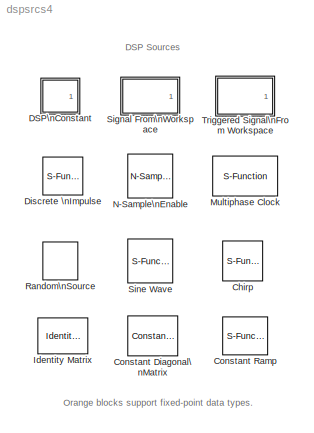
MODEL dspsrcs4
KIND library
BLOCK [S-Function] Chirp
  FunctionName = sdspchirp
  MaskCallbackString = |||||||||
  MaskDescription = Linear, Logarithmic, and Quadratic modes generate a swept-frequency cosine with instantaneous frequency values specified by the frequency and time parameters.   The Swept cosine mode generates a swept-frequency cosine with a linear instantaneous output frequency that may differ from the one specified by the frequency and time parameters.
  MaskDisplay = plot(t,y);\ntext(.2,.85,txt)
  MaskEnableString = on,on,on,on,on,on,on,on,on,on
  MaskHelp = web(dspbhelp);
  MaskIconFrame = on
  MaskIconOpaque = on
  MaskIconRotate = none
  MaskIconUnits = normalized
  MaskInitialization = [t,y,txt] = dspblkchirp2('icon');\n[beta,fmin] = dspblkchirp2('param',sweep, f0, f1, t1,Tsweep);
  MaskPromptString = Frequency sweep:|Sweep mode:|Initial frequency (Hz):|Target frequency (Hz):|Target time (sec):|Sweep time (sec):|Initial phase (radians):|Sample time:|Samples per frame:|Output data type:
  MaskSelfModifiable = on
  MaskStyleString = popup(Swept cosine|Linear|Logarithmic|Quadratic),popup(Unidirectional|Bidirectional),edit,edit,edit,edit,edit,edit,edit,popup(Double|Single)
  MaskTabNameString = ,,,,,,,,,
  MaskToolTipString = on,on,on,on,on,on,on,on,on,on
  MaskTunableValueString = on,on,on,on,on,on,on,off,off,off
  MaskType = Chirp
  MaskValueString = Linear|Unidirectional|1000|4000|1|1|0|1/8000|1|Double
  MaskVarAliasString = ,,,,,,,,,
  MaskVariables = sweep=@1;mode=@2;f0=@3;f1=@4;t1=@5;Tsweep=@6;phase=@7;Ts=@8;spf=@9;datatype=@10;
  MaskVisibilityString = on,on,on,on,on,on,on,on,on,on
  Parameters = sweep, mode, f0, f1, t1, Tsweep, phase, Ts, spf, beta, fmin,datatype
  Ports = [0, 1]
BLOCK [Reference] Constant Diagonal\nMatrix  REF=dspmtrx3/Constant Diagonal\nMatrix
  Ports = [0, 1]
  ShowPortLabels = off
  SourceBlock = dspmtrx3/Constant Diagonal\nMatrix
  SourceType = Constant Diagonal Matrix
  additionalParams = off
  allowOverrides = on
  dataType = Inherit from 'Constant(s) along diagonal'
  fracBitsMode = Best precision
  frame = off
  isSigned = on
  numFracBits = 15
  q = ones(1,3)
  udDataType = sfix(16)
  wordLen = 16
BLOCK [S-Function] Constant Ramp
  CopyFcn = dspfixptcopycallback
  FunctionName = sdspramp
  MaskCallbackString = |||||dspblkramp;|||dspblkramp;|dspblkramp;|
  MaskDescription = Generate a ramp of length L, where L is either the number of rows or the number of columns of the input to the block.  Specify whether L is equal to the number of input rows or columns using the 'Ramp length equals number of' parameter.\n\nThe output of this block is calculated using\noutput = [0:L-1] * slope + offset\n\nNote: Use the Ramp block in the Simulink Sources library to generate a ramp w...<+30ch>
  MaskDisplay = plot(x,y)
  MaskEnableString = on,on,on,off,off,on,on,on,on,on,on
  MaskHelp = web(dspbhelp);
  MaskIconFrame = on
  MaskIconOpaque = on
  MaskIconRotate = none
  MaskIconUnits = normalized
  MaskInitialization = x = [.1 .9];\nif ~isa(Slope,'double')\n	s = 1;\nelse\n	s = Slope;\nend\nif (s >= 0), y =  s * [0 1];\nelse,   y =  s * [-1 0];  end;\n[dtInfo,dTypeID]=dspblkramp('init');\nisSigned=dtInfo.DataTypeIsSigned;\nisCustomFloat=dtInfo.DataTypeIsCustomFloat;\nwordLength=dtInfo.DataTypeWordLength;\nfracBits=dtInfo.DataTypeFracOrMantBits;\n
  MaskPromptString = Ramp length equals number of:|Slope:|Offset:|------- Show additional parameters --------|Allow overrides from DSP Fixed-Point Attributes blocks|Output data type:|Signed|Word length:|User-defined data type (e.g. sfix(16), float('single')):|Set fraction length in output to:|Fraction length:
  MaskSelfModifiable = on
  MaskStyleString = popup(Rows|Columns),edit,edit,checkbox,checkbox,popup(Same as input|double|single|int8|uint8|int16|uint16|int32|uint32|boolean|Fixed-point|User-defined|Inherit via back propagation),checkbox,edit,edit,popup(Best precision|User-defined),edit
  MaskTabNameString = Main,Main,Main,Main,Main,Data Types,Data Types,Data Types,Data Types,Data Types,Data Types
  MaskToolTipString = on,on,on,on,on,on,on,on,on,on,on
  MaskTunableValueString = off,off,off,off,off,off,off,off,off,off,off
  MaskType = Constant Ramp
  MaskValueString = Rows|1|0|off|on|Same as input|on|16|sfix(16)|Best precision|15
  MaskVarAliasString = ,,,,,,,,,,
  MaskVariables = L=@1;Slope=@2;Offset=@3;additionalParams=@4;allowOverrides=@5;dataType=@6;isSigned=@7;wordLen=@8;udDataType=@9;fracBitsMode=@10;numFracBits=@11;
  MaskVisibilityString = on,on,on,off,off,on,off,off,off,off,off
  Parameters = L, Slope, Offset,isCustomFloat,isSigned,dTypeID,wordLength,fracBits,fracBitsMode
  Ports = [1, 1]
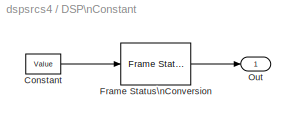
BLOCK [SubSystem] DSP\nConstant
  CopyFcn = dspfixptcopycallback
  MaskCallbackString = |dspblkdspconst2;|dspblkdspconst2;|dspblkdspconst2;|||||dspblkdspconst2;|||dspblkdspconst2;|dspblkdspconst2;||||
  MaskDescription = Output a discrete-time or continuous-time constant.
  MaskDisplay = disp(&1);
  MaskEnableString = on,on,on,on,on,on,off,off,on,on,on,on,on,on,on,on,on
  MaskHelp = web(dspbhelp);\n
  MaskIconFrame = on
  MaskIconOpaque = on
  MaskIconRotate = none
  MaskIconUnits = autoscale
  MaskInitialization = dspblkdspconst2('init');\ndspblkdspconst2('update');
  MaskPromptString = Constant value:|Sample mode:|Output:|Output:|Sample time:|Frame period:|------- Show additional parameters --------|Allow overrides from DSP Fixed-Point Attributes blocks|Output data type:|Signed|Word length:|User-defined data type:|Set fraction length in output to:|Fraction length:|old Interpret as 1D checkbox|old Sample time/Frame period|old Frame-based output checkbox
  MaskSelfModifiable = on
  MaskStyleString = edit,popup(Discrete|Continuous),popup(Sample-based (interpret vectors as 1-D)|Sample-based|Frame-based),popup(Sample-based (interpret vectors as 1-D)|Sample-based),edit,edit,checkbox,checkbox,popup(double|single|int8|uint8|int16|uint16|int32|uint32|boolean|Fixed-point|User-defined|Inherit from 'Constant value'|Inherit via back propagation),checkbox,edit,edit,popup(Best precision|User-defined),edit...<+15ch>
  MaskTabNameString = Main,Main,Main,Main,Main,Main,Main,Main,Data Types,Data Types,Data Types,Data Types,Data Types,Data Types,Main,Main,Main
  MaskToolTipString = on,on,on,on,on,on,on,on,on,on,on,on,on,on,on,on,on
  MaskTunableValueString = on,off,off,off,off,off,off,off,off,off,off,off,off,off,off,off,off
  MaskType = DSP Constant
  MaskValueString = 1|Discrete|Sample-based|Sample-based|1|2|off|on|Inherit from 'Constant value'|on|16|sfix(16)|Best precision|15|-inf|-inf|-inf
  MaskVarAliasString = ,,,,,,,,,,,,,,,,
  MaskVariables = Value=@1;SampleMode=@2;discreteOutput=@3;continuousOutput=@4;sampTime=@5;framePeriod=@6;additionalParams=@7;allowOverrides=@8;dataType=@9;isSigned=@10;wordLen=@11;udDataType=@12;fracBitsMode=@13;numFracBits=@14;InterpretAs1D=@15;Ts=@16;FramebasedOutput=@17;
  MaskVisibilityString = on,on,on,off,on,off,off,off,on,off,off,off,off,off,off,off,off
  MinAlgLoopOccurrences = off
  Ports = [0, 1]
  PropExecContextAcrossSSBoundary = on
  RTWSystemCode = Auto
  TreatAsAtomicUnit = off
BLOCK [Constant] DSP\nConstant/Constant
  SampleTime = sampTime
  Value = Value
  VectorParams1D = off
BLOCK [Reference] DSP\nConstant/Frame Status\nConversion  REF=dspsigattribs/Frame Status\nConversion
  Ports = [1, 1]
  ShowPortLabels = off
  SourceBlock = dspsigattribs/Frame Status\nConversion
  SourceType = Frame Status Conversion
  growRefPort = off
  outframe = Sample-based
BLOCK [Outport] DSP\nConstant/Out
  BusOutputAsStruct = off
  IconDisplay = Port number
BLOCK [S-Function] Discrete \nImpulse
  CopyFcn = dspfixptcopycallback
  FunctionName = sdspimpgen2
  MaskCallbackString = |||||dspblkimpgen2|||dspblkimpgen2|dspblkimpgen2|
  MaskDescription = Output a discrete unit impulse.  The impulse will be offset by the number of samples in the Delay parameter.
  MaskDisplay = plot(x,y)\n\n
  MaskEnableString = on,on,on,off,off,on,on,on,on,on,on
  MaskHelp = web(dspbhelp);\n
  MaskIconFrame = on
  MaskIconOpaque = on
  MaskIconRotate = none
  MaskIconUnits = autoscale
  MaskInitialization = [x,y]=dspblkimpgen2('icon');\n[dtInfo,dTypeID]=dspblkimpgen2('init');\nisSigned=dtInfo.DataTypeIsSigned;\nisCustomFloat=dtInfo.DataTypeIsCustomFloat;\nwordLength=dtInfo.DataTypeWordLength;\nfracLength=dtInfo.DataTypeFracOrMantBits;\n
  MaskPromptString = Delay (samples):|Sample time: |Samples per frame: |------- Show additional parameters --------|Allow overrides from DSP Fixed-Point Attributes blocks|Output data type:|Signed|Word length:|User-defined data type (e.g. sfix(16), float('single')):|Set fraction length in output to:|Fraction length:
  MaskSelfModifiable = on
  MaskStyleString = edit,edit,edit,checkbox,checkbox,popup(double|single|int8|uint8|int16|uint16|int32|uint32|boolean|Fixed-point|User-defined|Inherit via back propagation),checkbox,edit,edit,popup(Best precision|User-defined),edit
  MaskTabNameString = Main,Main,Main,Main,Main,Data Types,Data Types,Data Types,Data Types,Data Types,Data Types
  MaskToolTipString = on,on,on,on,on,on,on,on,on,on,on
  MaskTunableValueString = off,off,off,off,off,off,off,off,off,off,off
  MaskType = Discrete Impulse
  MaskValueString = 0|1|1|off|on|double|on|16|sfix(16)|Best precision|15
  MaskVarAliasString = ,,,,,,,,,,
  MaskVariables = Delay=@1;SampleTime=@2;FrameSample=@3;additionalParams=@4;allowOverrides=@5;dataType=@6;isSigned=@7;wordLen=@8;udDataType=@9;fracBitsMode=@10;numFracBits=@11;
  MaskVisibilityString = on,on,on,off,off,on,off,off,off,off,off
  Parameters = Delay, SampleTime,FrameSample,isCustomFloat,isSigned,dTypeID,wordLength,fracLength,[0 1]
  Ports = [0, 1]
BLOCK [Reference] Identity Matrix  REF=dspmtrx3/Identity Matrix
  Inherit = off
  N = 5
  Ports = [0, 1]
  SourceBlock = dspmtrx3/Identity Matrix
  SourceType = Identity Matrix
  Ts = 1
  additionalParams = off
  allowOverrides = on
  dataType = double
  fracBitsMode = Best precision
  isSigned = on
  numFracBits = 15
  udDataType = sfix(16)
  wordLen = 16
BLOCK [S-Function] Multiphase Clock
  CopyFcn = dspfixptcopycallback
  FunctionName = sdspmpclk2
  MaskCallbackString = |||||
  MaskDescription = Generate a vector of N binary signals representing the N clock phases.
  MaskDisplay = disp(s)
  MaskEnableString = on,on,on,on,on,on
  MaskHelp = web(dspbhelp);\n
  MaskIconFrame = on
  MaskIconOpaque = on
  MaskIconRotate = none
  MaskIconUnits = autoscale
  MaskInitialization = if isempty(NumPhases), s=&2;\nelse s=num2str(NumPhases);\nend\ns=[s '-Phase\\nClock'];\n
  MaskPromptString = Clock frequency (Hz):|Number of phases, N:|Starting phase (1 to N):|Number of phase intervals over which clock is active (1 to N-1):|Active level (polarity):|Output data type
  MaskSelfModifiable = on
  MaskStyleString = edit,edit,edit,edit,popup(High (1)|Low (0)),popup(Logical|Boolean)
  MaskTabNameString = ,,,,,
  MaskToolTipString = on,on,on,on,on,on
  MaskTunableValueString = off,off,on,on,on,off
  MaskType = Multiphase Clock
  MaskValueString = 1|4|1|3|High (1)|Logical
  MaskVarAliasString = ,,,,,
  MaskVariables = ClkFreq=@1;NumPhases=@2;StartPhase=@3;DutyCycle=@4;ActiveLevel=@5;DataType=@6;
  MaskVisibilityString = on,on,on,on,on,on
  Parameters = ClkFreq, NumPhases, ActiveLevel, DutyCycle, StartPhase,DataType
  Ports = [0, 1]
BLOCK [Reference] N-Sample\nEnable  REF=dspswit3/N-Sample\nEnable
  ActiveLevel = Low (0)
  DataType = Logical
  N = 8
  Ports = [0, 1]
  SourceBlock = dspswit3/N-Sample\nEnable
  SourceType = N-Sample Enable
  TriggerType = Rising edge
  Ts = 1
  reset = off
BLOCK [S-Function] Random\nSource
  Diagnostics = AllowInheritedTsInSrc
  FunctionName = sdsprandsrc2
  MaskCallbackString = dspblkrandsrc2;|dspblkrandsrc2;\n||||||dspblkrandsrc2;||dspblkrandsrc2;|dspblkrandsrc2;||||
  MaskDescription = Output a random signal with uniform or Gaussian (normal) distribution.  Set output repeatability to Nonrepeatable (block randomly selects initial seed every time simulation starts), Repeatable (block randomly selects initial seed once and uses it every time simulation starts), or Specify seed (block uses specified initial seed every time simulation starts, producing repeatable output).
  MaskDisplay = plot(x,y);\n
  MaskEnableString = on,on,on,on,on,on,on,on,on,on,on,on,on,on,on
  MaskHelp = web(dspbhelp);
  MaskIconFrame = on
  MaskIconOpaque = on
  MaskIconRotate = none
  MaskIconUnits = normalized
  MaskInitialization = [x,y]=dspblkrandsrc2('icon');\nif RepMode == 1\n	transformSeed=[];\nelse\n	transformSeed=eval(dspblkrandsrc2('seed'),'rawSeed');\nend\n\n
  MaskPromptString = Source type:|Method:|Number of uniform values to sum:|Minimum:|Maximum:|Mean:|Variance:|Repeatability:|Initial seed:|Inherit output port attributes|Sample mode: |Sample time:|Samples per frame:|Output data type:|Complexity:
  MaskSelfModifiable = on
  MaskStyleString = popup(Uniform|Gaussian),popup(Ziggurat|Sum of uniform values),edit,edit,edit,edit,edit,popup(Specify seed|Repeatable|Not repeatable),edit,checkbox,popup(Discrete|Continuous),edit,edit,popup(Double|Single),popup(Real|Complex)
  MaskTabNameString = ,,,,,,,,,,,,,,
  MaskToolTipString = on,on,on,on,on,on,on,on,on,on,on,on,on,on,on
  MaskTunableValueString = off,off,off,on,on,on,on,off,on,off,off,off,off,off,off
  MaskType = Random Source
  MaskValueString = Uniform|Ziggurat|12|0|1|0|1|Not repeatable|1|off|Discrete|1|1|Double|Real
  MaskVarAliasString = ,,,,,,,,Seed,,,,,,
  MaskVariables = SrcType=@1;NormMethod=@2;CltLength=@3;Min=@4;Max=@5;Mean=@6;Var=@7;RepMode=@8;rawSeed=@9;Inherit=@10;SampMode=@11;SampTime=@12;SampFrame=@13;DataType=@14;OutComplex=@15;
  MaskVisibilityString = on,off,off,on,on,off,off,on,off,on,on,on,on,on,on
  Parameters = SrcType,NormMethod,double(CltLength),double(Min),double(Max),Mean,double(Var),RepMode,rawSeed,transformSeed,Inherit,SampMode,double(SampTime),SampFrame,DataType,OutComplex
  Ports = [0, 1]
  UserData = DataTag0
  UserDataPersistent = on
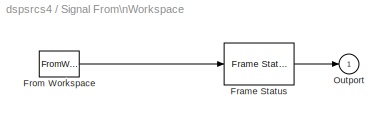
BLOCK [SubSystem] Signal From\nWorkspace
  CopyFcn = dspfixptcopycallback
  MaskCallbackString = |||
  MaskDescription = Output signal samples obtained from the MATLAB workspace at successive sample times.  A signal matrix is interpreted as having one channel per column.  Signal columns may be buffered into frames by specifying a number of samples per frame greater than 1.\n\nAn M x N x P signal array outputs M x N matrices at successive sample times.  The samples per frame must be equal to 1 for 3 dimensional signa...<+9ch>
  MaskDisplay = disp(&1)
  MaskEnableString = on,on,on,on
  MaskHelp = web(dspbhelp);
  MaskIconFrame = on
  MaskIconOpaque = on
  MaskIconRotate = none
  MaskIconUnits = autoscale
  MaskInitialization = [s,Ts] = dspblksfw2('init', X,Ts,nsamps);\n
  MaskPromptString = Signal:|Sample time:|Samples per frame:|Form output after final data value by:
  MaskSelfModifiable = on
  MaskStyleString = edit,edit,edit,popup(Setting to zero|Holding final value|Cyclic repetition)
  MaskTabNameString = ,,,
  MaskToolTipString = on,on,on,on
  MaskTunableValueString = off,off,off,off
  MaskType = Signal From Workspace
  MaskValueString = 1:10|1|1|Setting to zero
  MaskVarAliasString = ,,,
  MaskVariables = X=@1;Ts=@2;nsamps=@3;OutputAfterFinalValue=@4;
  MaskVisibilityString = on,on,on,on
  MinAlgLoopOccurrences = off
  Ports = [0, 1]
  PropExecContextAcrossSSBoundary = on
  RTWSystemCode = Auto
  TreatAsAtomicUnit = off
BLOCK [Reference] Signal From\nWorkspace/Frame Status  REF=dspsigattribs/Frame Status\nConversion
  Ports = [1, 1]
  ShowPortLabels = off
  SourceBlock = dspsigattribs/Frame Status\nConversion
  SourceType = Frame Status Conversion
  growRefPort = off
  outframe = Sample-based
BLOCK [FromWorkspace] Signal From\nWorkspace/From Workspace
  Interpolate = off
  OutputAfterFinalValue = Setting to zero
  SampleTime = Ts
  VariableName = s
BLOCK [Outport] Signal From\nWorkspace/Outport
  BusOutputAsStruct = off
  IconDisplay = Port number
  InitialOutput = 0
BLOCK [S-Function] Sine Wave
  CopyFcn = dspfixptcopycallback
  FunctionName = sdspsine2
  MaskCallbackString = |||dspblksine;||dspblksine;||||||dspblksine||dspblksine|dspblksine||
  MaskDescription = Output samples of a sinusoid.  To generate more than one sinusoid simultaneously, enter a vector of values for the Amplitude, Frequency, and Phase offset parameters.
  MaskDisplay = plot(x,y)\ntext(3.25,.75,'DSP');
  MaskEnableString = on,on,on,on,on,on,on,on,on,off,off,on,on,on,on,on,on
  MaskHelp = web(dspbhelp);\n
  MaskIconFrame = on
  MaskIconOpaque = on
  MaskIconRotate = none
  MaskIconUnits = autoscale
  MaskInitialization = [x,y] = dspblksine('icon');\n[dtInfo,dTypeID]=dspblksine('init');\nisSigned=dtInfo.DataTypeIsSigned;\nisCustomFloat=dtInfo.DataTypeIsCustomFloat;\nwordLength=dtInfo.DataTypeWordLength;\nfracBits=dtInfo.DataTypeFracOrMantBits;\ndType=dataType;
  MaskPromptString = Amplitude:|Frequency (Hz):|Phase offset (rad):|Sample mode:|Output complexity:|Computation method:|Optimize table for:|Sample time:|Samples per frame:|------- Show additional parameters --------|Allow overrides from DSP Fixed-Point Attributes blocks|Output data type:|Word length:|User-defined data type (e.g. sfix(16), float('single')):|Set fraction length in output to:|Fraction length:|Resetting s...<+22ch>
  MaskSelfModifiable = on
  MaskStyleString = edit,edit,edit,popup(Discrete|Continuous),popup(Real|Complex),popup(Trigonometric fcn|Table lookup|Differential),popup(Speed|Memory),edit,edit,checkbox,checkbox,popup(double|single|Fixed-point|User-defined|Inherit via back propagation),edit,edit,popup(Best precision|User-defined),edit,popup(Restart at time zero|Catch up to simulation time)
  MaskTabNameString = Main,Main,Main,Main,Main,Main,Main,Main,Main,Main,Main,Data Types,Data Types,Data Types,Data Types,Data Types,Main
  MaskToolTipString = on,on,on,on,on,on,on,on,on,on,on,on,on,on,on,on,on
  MaskTunableValueString = on,on,on,off,off,off,off,off,off,off,off,off,off,off,off,off,off
  MaskType = Sine Wave
  MaskValueString = 1|100|0|Discrete|Real|Trigonometric fcn|Speed|1/1000|1|off|on|double|16|sfix(16)|Best precision|15|Restart at time zero
  MaskVarAliasString = ,,,,,,,,,,,dType,,,,,
  MaskVariables = Amplitude=@1;Frequency=@2;Phase=@3;SampleMode=@4;OutComplex=@5;CompMethod=@6;TableSize=@7;SampleTime=@8;SamplesPerFrame=@9;additionalParams=@10;allowOverrides=@11;dataType=@12;wordLen=@13;udDataType=@14;fracBitsMode=@15;numFracBits=@16;ResetState=@17;
  MaskVisibilityString = on,on,on,on,on,on,off,on,on,off,off,on,off,off,off,off,on
  Parameters = Amplitude,Frequency,Phase,SampleMode,OutComplex,CompMethod,SampleTime,SamplesPerFrame,ResetState,TableSize,isCustomFloat,isSigned,dTypeID,wordLength,fracBits
  Ports = [0, 1]
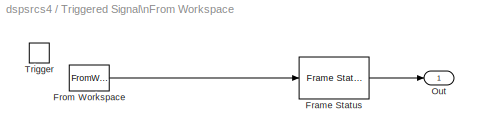
BLOCK [SubSystem] Triggered Signal\nFrom Workspace
  CopyFcn = dspfixptcopycallback
  MaskCallbackString = ||||
  MaskDescription = Output successive signal samples obtained from the MATLAB workspace when a trigger event occurs. A signal matrix is interpreted as having one channel per column.  Signal columns may be buffered into frames by specifying a number of samples per frame greater than 1. An M x N x P signal array outputs M x N matrices when a trigger event occurs.  The samples per frame must be equal to 1 for 3 dimensio...<+18ch>
  MaskDisplay = disp(&1);
  MaskEnableString = on,on,on,on,on
  MaskHelp = web(dspbhelp);
  MaskIconFrame = on
  MaskIconOpaque = off
  MaskIconRotate = none
  MaskIconUnits = pixels
  MaskInitialization = s = dspblktsfw2('init', Signal,SamplesPerFrame);
  MaskPromptString = Signal:|Trigger type:|Initial output:|Samples per frame:|Form output after final data value by:
  MaskSelfModifiable = on
  MaskStyleString = edit,popup(Rising edge|Falling edge|Either edge),edit,edit,popup(Setting to zero|Holding final value|Cyclic repetition)
  MaskTabNameString = ,,,,
  MaskToolTipString = on,on,on,on,on
  MaskTunableValueString = off,off,off,off,off
  MaskType = Triggered Signal From Workspace
  MaskValueString = 1:10|Falling edge|0|1|Setting to zero
  MaskVarAliasString = ,,,,
  MaskVariables = Signal=@1;TriggerType=@2;ic=@3;SamplesPerFrame=@4;OutputAfterFinalValue=@5;
  MaskVisibilityString = on,on,on,on,on
  MinAlgLoopOccurrences = off
  Ports = [0, 1, 0, 1]
  PropExecContextAcrossSSBoundary = on
  RTWSystemCode = Auto
  TreatAsAtomicUnit = on
BLOCK [Reference] Triggered Signal\nFrom Workspace/Frame Status  REF=dspsigattribs/Frame Status\nConversion
  Ports = [1, 1]
  ShowPortLabels = off
  SourceBlock = dspsigattribs/Frame Status\nConversion
  SourceType = Frame Status Conversion
  growRefPort = off
  outframe = Sample-based
BLOCK [FromWorkspace] Triggered Signal\nFrom Workspace/From Workspace
  Interpolate = off
  OutputAfterFinalValue = Setting to zero
  VariableName = s
BLOCK [Outport] Triggered Signal\nFrom Workspace/Out
  BusOutputAsStruct = off
  IconDisplay = Port number
  InitialOutput = ic
BLOCK [TriggerPort] Triggered Signal\nFrom Workspace/Trigger
  Ports = [0, 1]
  StatesWhenEnabling = reset
  TriggerType = falling
  ZeroCross = off
ANNOTATION (root): DSP Sources
ANNOTATION (root): Orange blocks support fixed-point data types.
LINE DSP\nConstant/Constant:1 -> DSP\nConstant/Frame Status\nConversion:1
LINE DSP\nConstant/Frame Status\nConversion:1 -> DSP\nConstant/Out:1
LINE Signal From\nWorkspace/Frame Status:1 -> Signal From\nWorkspace/Outport:1
LINE Signal From\nWorkspace/From Workspace:1 -> Signal From\nWorkspace/Frame Status:1
LINE Triggered Signal\nFrom Workspace/Frame Status:1 -> Triggered Signal\nFrom Workspace/Out:1
LINE Triggered Signal\nFrom Workspace/From Workspace:1 -> Triggered Signal\nFrom Workspace/Frame Status:1
